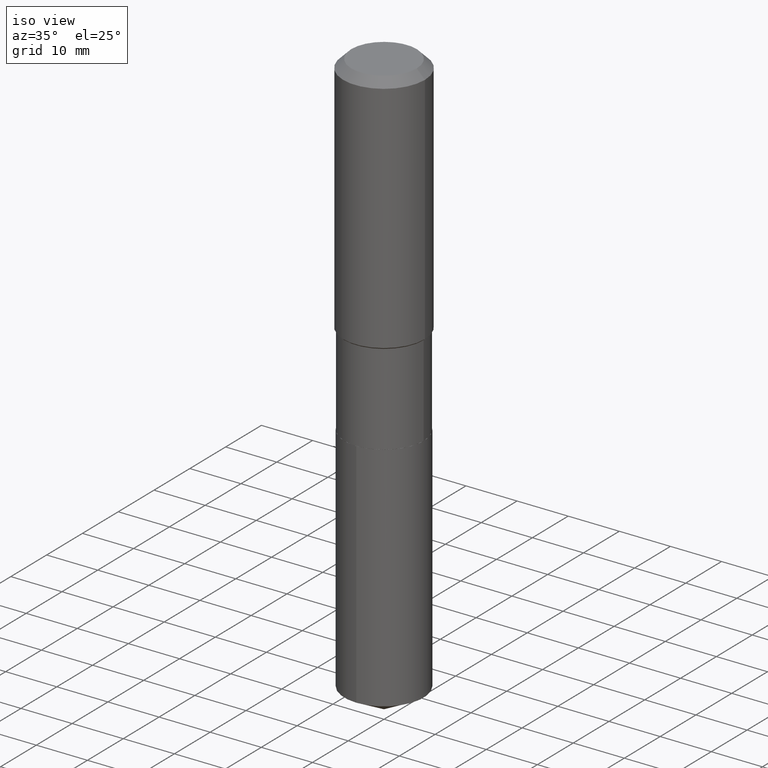
[diagram: clean part render]
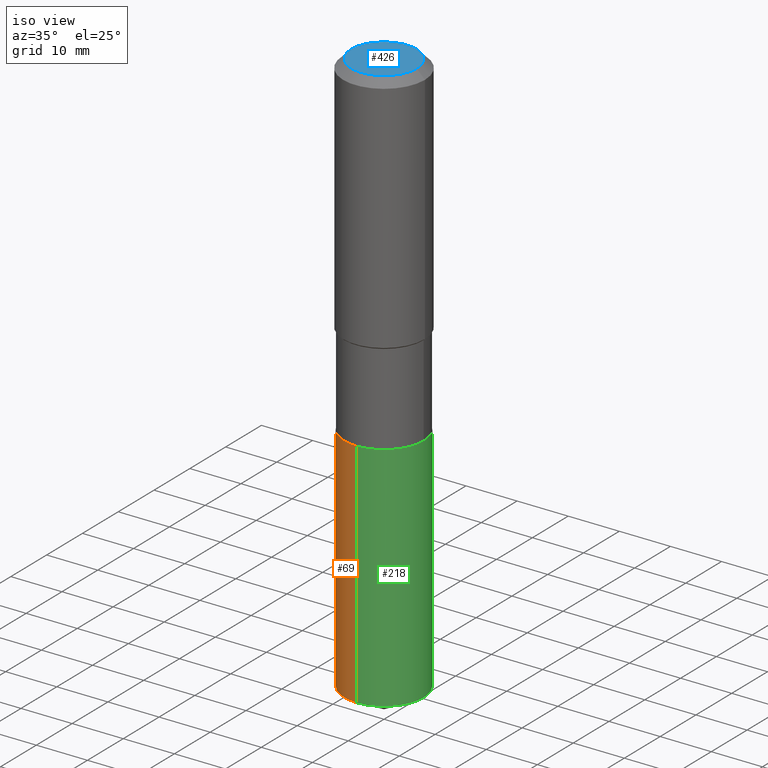
[diagram: same view with three faces highlighted in distinct colors, each labeled with its STEP entity id]
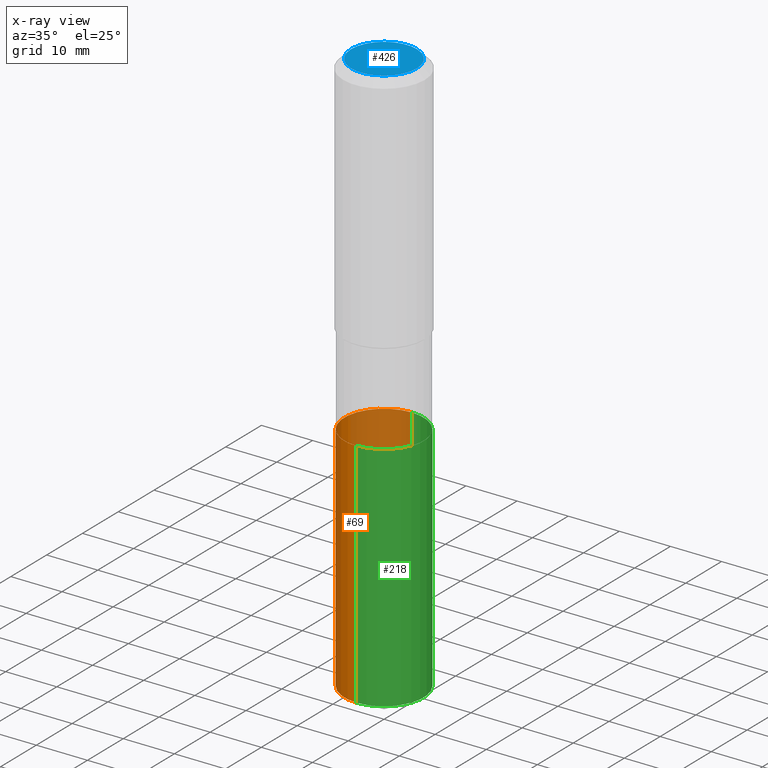
[diagram: x-ray of the same camera — body ghosted, the three highlighted faces saturated]
A machine part, iso view with three faces highlighted in distinct colors.
The next image is the same camera in x-ray (body ghosted, the three faces saturated) — at least one of them is partly hidden behind the body in this view.
Their STEP definitions:

[orange] entity #69 — the highlighted cylindrical surface (partial cylindrical patch) has radius 7.7495 mm, axis along (-0, 0, 1).
#17 = CARTESIAN_POINT ( 'NONE',  ( -2.130501912961973373E-15, -0.3051000000000153034, -4.365375452400082068 ) ) ;
#48 = VERTEX_POINT ( 'NONE', #446 ) ;
#52 = DIRECTION ( 'NONE',  ( -6.982962677686265133E-15, -1.000000000000000000, 3.581577179500836259E-15 ) ) ;
#61 = DIRECTION ( 'NONE',  ( -2.445658256467023236E-29, 3.491210035256643844E-15, 1.000000000000000000 ) ) ;
#69 = ADVANCED_FACE ( 'NONE', ( #73 ), #117, .T. ) ;
#73 = FACE_OUTER_BOUND ( 'NONE', #479, .T. ) ;
#83 = EDGE_CURVE ( 'NONE', #212, #48, #473, .T. ) ;
#117 = CYLINDRICAL_SURFACE ( 'NONE', #188, 0.3050999999999999823 ) ;
#118 = ORIENTED_EDGE ( 'NONE', *, *, #83, .F. ) ;
#155 = EDGE_CURVE ( 'NONE', #386, #427, #189, .T. ) ;
#166 = CARTESIAN_POINT ( 'NONE',  ( 1.067572798229882774E-28, -1.524114219764069314E-14, -4.365375452400082956 ) ) ;
#174 = ORIENTED_EDGE ( 'NONE', *, *, #229, .F. ) ;
#177 = AXIS2_PLACEMENT_3D ( 'NONE', #378, #342, #344 ) ;
#188 = AXIS2_PLACEMENT_3D ( 'NONE', #233, #337, #452 ) ;
#189 = CIRCLE ( 'NONE', #295, 0.3051000000000000378 ) ;
#200 = VECTOR ( 'NONE', #202, 39.37007874015748143 ) ;
#202 = DIRECTION ( 'NONE',  ( -2.445658256467023236E-29, 3.491210035256643844E-15, 1.000000000000000000 ) ) ;
#212 = VERTEX_POINT ( 'NONE', #397 ) ;
#229 = EDGE_CURVE ( 'NONE', #386, #212, #238, .T. ) ;
#233 = CARTESIAN_POINT ( 'NONE',  ( 6.306130410509609656E-29, -9.003482928474816704E-15, -2.578699999999999548 ) ) ;
#238 = LINE ( 'NONE', #390, #200 ) ;
#246 = DIRECTION ( 'NONE',  ( -2.445658256467023236E-29, 3.491210035256643450E-15, 1.000000000000000000 ) ) ;
#251 = CARTESIAN_POINT ( 'NONE',  ( -2.130501912962016366E-15, -0.3051000000000089751, -2.578699999999998216 ) ) ;
#269 = ORIENTED_EDGE ( 'NONE', *, *, #155, .T. ) ;
#291 = CARTESIAN_POINT ( 'NONE',  ( 2.167865886804172038E-15, 0.3050999999999847723, -4.365375452400083844 ) ) ;
#295 = AXIS2_PLACEMENT_3D ( 'NONE', #166, #246, #52 ) ;
#337 = DIRECTION ( 'NONE',  ( -2.445658256467023236E-29, 3.491210035256643450E-15, 1.000000000000000000 ) ) ;
#342 = DIRECTION ( 'NONE',  ( -2.445658256467023236E-29, 3.491210035256643450E-15, 1.000000000000000000 ) ) ;
#344 = DIRECTION ( 'NONE',  ( -6.982962677686265133E-15, -1.000000000000000000, 3.581577179500837048E-15 ) ) ;
#358 = VECTOR ( 'NONE', #61, 39.37007874015748143 ) ;
#359 = LINE ( 'NONE', #251, #358 ) ;
#378 = CARTESIAN_POINT ( 'NONE',  ( 6.306130410509609656E-29, -9.003482928474816704E-15, -2.578699999999999548 ) ) ;
#380 = ORIENTED_EDGE ( 'NONE', *, *, #440, .T. ) ;
#386 = VERTEX_POINT ( 'NONE', #291 ) ;
#390 = CARTESIAN_POINT ( 'NONE',  ( 2.167865886804128256E-15, 0.3050999999999909895, -2.578700000000000436 ) ) ;
#397 = CARTESIAN_POINT ( 'NONE',  ( 2.167865886804172432E-15, 0.3050999999999909895, -2.578700000000000436 ) ) ;
#427 = VERTEX_POINT ( 'NONE', #17 ) ;
#440 = EDGE_CURVE ( 'NONE', #427, #48, #359, .T. ) ;
#446 = CARTESIAN_POINT ( 'NONE',  ( -2.130501912962016366E-15, -0.3051000000000089751, -2.578699999999998216 ) ) ;
#452 = DIRECTION ( 'NONE',  ( -6.982962677686265133E-15, -1.000000000000000000, 3.581577179500837048E-15 ) ) ;
#473 = CIRCLE ( 'NONE', #177, 0.3050999999999999823 ) ;
#479 = EDGE_LOOP ( 'NONE', ( #174, #269, #380, #118 ) ) ;

[blue] entity #426 — the highlighted planar face has unit normal (0, -0, -1).
#1 = EDGE_LOOP ( 'NONE', ( #3, #447 ) ) ;
#3 = ORIENTED_EDGE ( 'NONE', *, *, #165, .T. ) ;
#15 = AXIS2_PLACEMENT_3D ( 'NONE', #60, #171, #210 ) ;
#55 = CARTESIAN_POINT ( 'NONE',  ( -9.427742298522569579E-47, 1.346031739168368629E-32, 3.855188123715871501E-18 ) ) ;
#60 = CARTESIAN_POINT ( 'NONE',  ( -4.713871149261284790E-47, 6.730158695841843144E-33, 1.927594061857935750E-18 ) ) ;
#81 = VERTEX_POINT ( 'NONE', #178 ) ;
#110 = VERTEX_POINT ( 'NONE', #437 ) ;
#165 = EDGE_CURVE ( 'NONE', #110, #81, #419, .T. ) ;
#171 = DIRECTION ( 'NONE',  ( 2.438088387897960049E-29, -3.491481338843145188E-15, -1.000000000000000000 ) ) ;
#178 = CARTESIAN_POINT ( 'NONE',  ( 0.2519600000000000173, -2.054606664725195058E-15, 3.855188123729206640E-18 ) ) ;
#192 = DIRECTION ( 'NONE',  ( -2.445468806185136597E-29, 3.491481338843145583E-15, 1.000000000000000000 ) ) ;
#199 = FACE_OUTER_BOUND ( 'NONE', #1, .T. ) ;
#210 = DIRECTION ( 'NONE',  ( -1.000000000000000000, 6.982962677686265922E-15, -4.876176775795935793E-29 ) ) ;
#216 = CIRCLE ( 'NONE', #404, 0.2519600000000000173 ) ;
#263 = EDGE_CURVE ( 'NONE', #81, #110, #216, .T. ) ;
#266 = DIRECTION ( 'NONE',  ( -2.445468806185136597E-29, 3.491481338843145583E-15, 1.000000000000000000 ) ) ;
#340 = CARTESIAN_POINT ( 'NONE',  ( -9.427742298522569579E-47, 1.346031739168368629E-32, 3.855188123715871501E-18 ) ) ;
#368 = AXIS2_PLACEMENT_3D ( 'NONE', #55, #192, #463 ) ;
#402 = PLANE ( 'NONE',  #15 ) ;
#404 = AXIS2_PLACEMENT_3D ( 'NONE', #340, #266, #490 ) ;
#419 = CIRCLE ( 'NONE', #368, 0.2519600000000000173 ) ;
#426 = ADVANCED_FACE ( 'NONE', ( #199 ), #402, .F. ) ;
#437 = CARTESIAN_POINT ( 'NONE',  ( -0.2519600000000000173, 1.869391481036695286E-15, 3.855188123703182704E-18 ) ) ;
#447 = ORIENTED_EDGE ( 'NONE', *, *, #263, .T. ) ;
#463 = DIRECTION ( 'NONE',  ( 1.000000000000000000, -6.982962677686266711E-15, 4.876115136096691995E-29 ) ) ;
#490 = DIRECTION ( 'NONE',  ( 1.000000000000000000, -6.982962677686266711E-15, 4.876115136096691995E-29 ) ) ;

[green] entity #218 — the highlighted cylindrical surface (partial cylindrical patch) has radius 7.7495 mm, axis along (-0, 0, 1).
#4 = CIRCLE ( 'NONE', #34, 0.3051000000000000378 ) ;
#17 = CARTESIAN_POINT ( 'NONE',  ( -2.130501912961973373E-15, -0.3051000000000153034, -4.365375452400082068 ) ) ;
#25 = AXIS2_PLACEMENT_3D ( 'NONE', #169, #120, #424 ) ;
#34 = AXIS2_PLACEMENT_3D ( 'NONE', #486, #225, #182 ) ;
#48 = VERTEX_POINT ( 'NONE', #446 ) ;
#54 = AXIS2_PLACEMENT_3D ( 'NONE', #94, #137, #476 ) ;
#61 = DIRECTION ( 'NONE',  ( -2.445658256467023236E-29, 3.491210035256643844E-15, 1.000000000000000000 ) ) ;
#68 = EDGE_CURVE ( 'NONE', #427, #386, #4, .T. ) ;
#94 = CARTESIAN_POINT ( 'NONE',  ( 6.306130410509609656E-29, -9.003482928474816704E-15, -2.578699999999999548 ) ) ;
#120 = DIRECTION ( 'NONE',  ( -2.445658256467023236E-29, 3.491210035256643450E-15, 1.000000000000000000 ) ) ;
#137 = DIRECTION ( 'NONE',  ( -2.445658256467023236E-29, 3.491210035256643450E-15, 1.000000000000000000 ) ) ;
#169 = CARTESIAN_POINT ( 'NONE',  ( 6.306130410509609656E-29, -9.003482928474816704E-15, -2.578699999999999548 ) ) ;
#182 = DIRECTION ( 'NONE',  ( -6.982962677686265133E-15, -1.000000000000000000, 3.581577179500836259E-15 ) ) ;
#200 = VECTOR ( 'NONE', #202, 39.37007874015748143 ) ;
#202 = DIRECTION ( 'NONE',  ( -2.445658256467023236E-29, 3.491210035256643844E-15, 1.000000000000000000 ) ) ;
#212 = VERTEX_POINT ( 'NONE', #397 ) ;
#218 = ADVANCED_FACE ( 'NONE', ( #395 ), #459, .T. ) ;
#225 = DIRECTION ( 'NONE',  ( -2.445658256467023236E-29, 3.491210035256643450E-15, 1.000000000000000000 ) ) ;
#229 = EDGE_CURVE ( 'NONE', #386, #212, #238, .T. ) ;
#238 = LINE ( 'NONE', #390, #200 ) ;
#250 = ORIENTED_EDGE ( 'NONE', *, *, #440, .F. ) ;
#251 = CARTESIAN_POINT ( 'NONE',  ( -2.130501912962016366E-15, -0.3051000000000089751, -2.578699999999998216 ) ) ;
#274 = ORIENTED_EDGE ( 'NONE', *, *, #341, .F. ) ;
#291 = CARTESIAN_POINT ( 'NONE',  ( 2.167865886804172038E-15, 0.3050999999999847723, -4.365375452400083844 ) ) ;
#333 = ORIENTED_EDGE ( 'NONE', *, *, #229, .T. ) ;
#339 = EDGE_LOOP ( 'NONE', ( #449, #333, #274, #250 ) ) ;
#341 = EDGE_CURVE ( 'NONE', #48, #212, #442, .T. ) ;
#358 = VECTOR ( 'NONE', #61, 39.37007874015748143 ) ;
#359 = LINE ( 'NONE', #251, #358 ) ;
#386 = VERTEX_POINT ( 'NONE', #291 ) ;
#390 = CARTESIAN_POINT ( 'NONE',  ( 2.167865886804128256E-15, 0.3050999999999909895, -2.578700000000000436 ) ) ;
#395 = FACE_OUTER_BOUND ( 'NONE', #339, .T. ) ;
#397 = CARTESIAN_POINT ( 'NONE',  ( 2.167865886804172432E-15, 0.3050999999999909895, -2.578700000000000436 ) ) ;
#424 = DIRECTION ( 'NONE',  ( -6.982962677686265133E-15, -1.000000000000000000, 3.581577179500837048E-15 ) ) ;
#427 = VERTEX_POINT ( 'NONE', #17 ) ;
#440 = EDGE_CURVE ( 'NONE', #427, #48, #359, .T. ) ;
#442 = CIRCLE ( 'NONE', #54, 0.3050999999999999823 ) ;
#446 = CARTESIAN_POINT ( 'NONE',  ( -2.130501912962016366E-15, -0.3051000000000089751, -2.578699999999998216 ) ) ;
#449 = ORIENTED_EDGE ( 'NONE', *, *, #68, .T. ) ;
#459 = CYLINDRICAL_SURFACE ( 'NONE', #25, 0.3050999999999999823 ) ;
#476 = DIRECTION ( 'NONE',  ( -6.982962677686265133E-15, -1.000000000000000000, 3.581577179500837048E-15 ) ) ;
#486 = CARTESIAN_POINT ( 'NONE',  ( 1.067572798229882774E-28, -1.524114219764069314E-14, -4.365375452400082956 ) ) ;